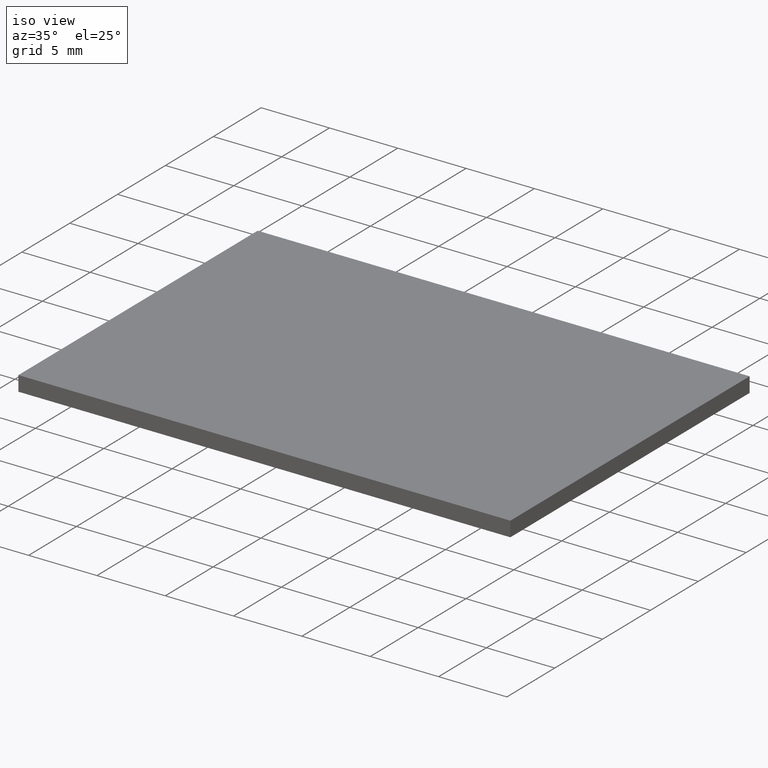
[diagram: clean part render]
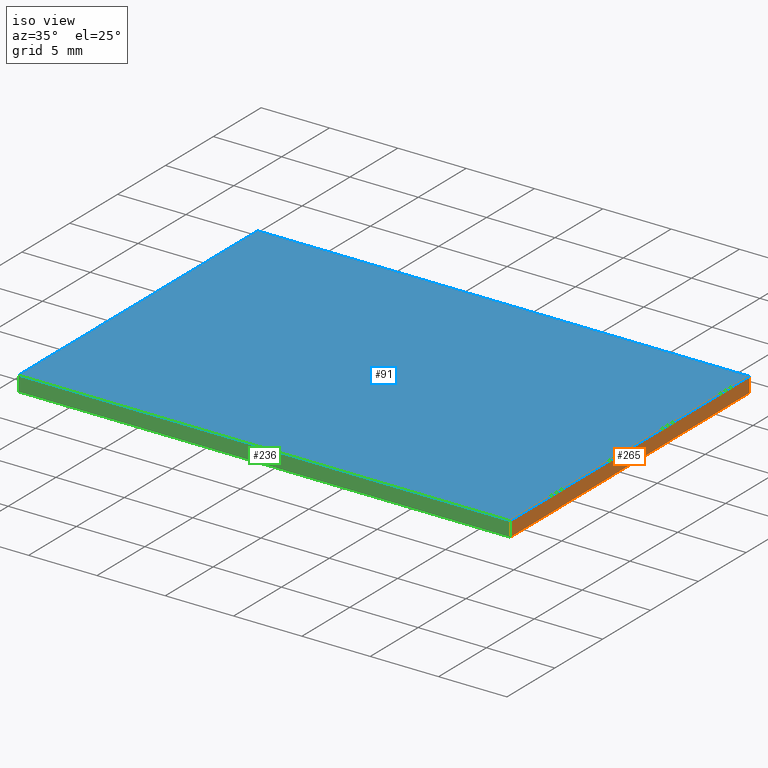
[diagram: same view with three faces highlighted in distinct colors, each labeled with its STEP entity id]
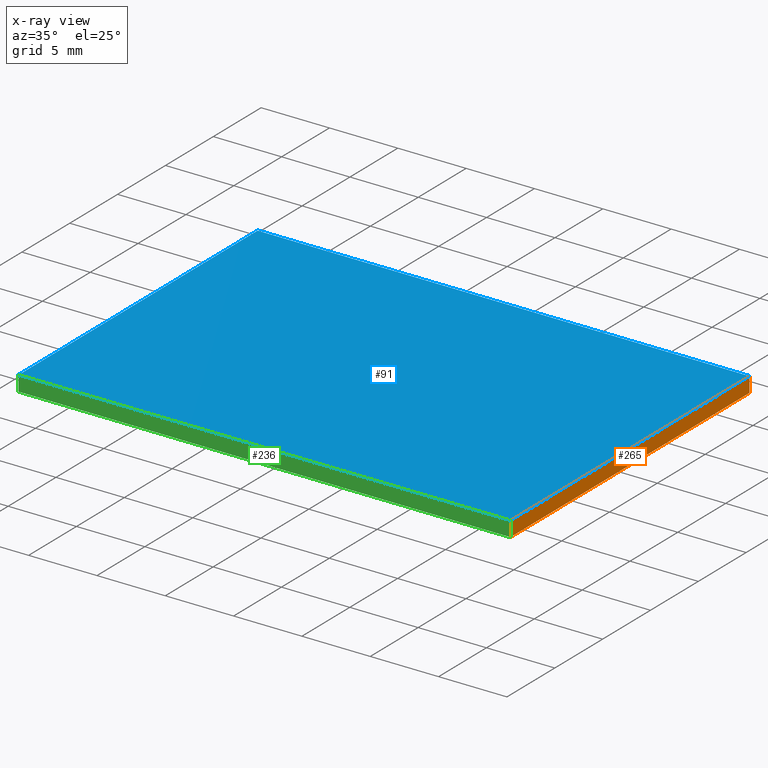
[diagram: x-ray of the same camera — body ghosted, the three highlighted faces saturated]
A machine part, iso view with three faces highlighted in distinct colors.
The next image is the same camera in x-ray (body ghosted, the three faces saturated) — at least one of them is partly hidden behind the body in this view.
Their STEP definitions:

[orange] entity #265 — the highlighted planar face has unit normal (-1, 0, 0).
#8 = VERTEX_POINT ( 'NONE', #110 ) ;
#11 = DIRECTION ( 'NONE',  ( -0.0000000000000000000, -0.0000000000000000000, -1.000000000000000000 ) ) ;
#12 = ORIENTED_EDGE ( 'NONE', *, *, #18, .T. ) ;
#13 = CARTESIAN_POINT ( 'NONE',  ( 17.99999999999999600, 12.49999999999999600, 0.0000000000000000000 ) ) ;
#18 = EDGE_CURVE ( 'NONE', #184, #8, #266, .T. ) ;
#29 = VECTOR ( 'NONE', #33, 1000.000000000000000 ) ;
#33 = DIRECTION ( 'NONE',  ( 0.0000000000000000000, 1.000000000000000000, 0.0000000000000000000 ) ) ;
#40 = DIRECTION ( 'NONE',  ( -1.000000000000000000, 0.0000000000000000000, 0.0000000000000000000 ) ) ;
#41 = DIRECTION ( 'NONE',  ( 0.0000000000000000000, 0.0000000000000000000, 1.000000000000000000 ) ) ;
#62 = CARTESIAN_POINT ( 'NONE',  ( 17.99999999999999600, 12.49999999999999600, 1.100000000000000100 ) ) ;
#64 = CARTESIAN_POINT ( 'NONE',  ( 17.99999999999999600, -12.50000000000000400, 1.100000000000000100 ) ) ;
#70 = DIRECTION ( 'NONE',  ( 0.0000000000000000000, 1.000000000000000000, 0.0000000000000000000 ) ) ;
#89 = EDGE_CURVE ( 'NONE', #254, #113, #225, .T. ) ;
#110 = CARTESIAN_POINT ( 'NONE',  ( 17.99999999999999600, -12.50000000000000400, 0.0000000000000000000 ) ) ;
#112 = CARTESIAN_POINT ( 'NONE',  ( 17.99999999999999600, -12.50000000000000400, 1.100000000000000100 ) ) ;
#113 = VERTEX_POINT ( 'NONE', #13 ) ;
#114 = CARTESIAN_POINT ( 'NONE',  ( 17.99999999999999600, -12.50000000000000400, 1.100000000000000100 ) ) ;
#122 = VECTOR ( 'NONE', #11, 1000.000000000000000 ) ;
#125 = ORIENTED_EDGE ( 'NONE', *, *, #89, .F. ) ;
#130 = FACE_OUTER_BOUND ( 'NONE', #248, .T. ) ;
#138 = PLANE ( 'NONE',  #222 ) ;
#150 = ORIENTED_EDGE ( 'NONE', *, *, #226, .F. ) ;
#159 = EDGE_CURVE ( 'NONE', #8, #113, #162, .T. ) ;
#162 = LINE ( 'NONE', #187, #29 ) ;
#165 = DIRECTION ( 'NONE',  ( -0.0000000000000000000, -0.0000000000000000000, -1.000000000000000000 ) ) ;
#175 = VECTOR ( 'NONE', #165, 1000.000000000000000 ) ;
#181 = VECTOR ( 'NONE', #70, 1000.000000000000000 ) ;
#184 = VERTEX_POINT ( 'NONE', #64 ) ;
#187 = CARTESIAN_POINT ( 'NONE',  ( 17.99999999999999600, -12.50000000000000400, 0.0000000000000000000 ) ) ;
#192 = CARTESIAN_POINT ( 'NONE',  ( 17.99999999999999600, -12.50000000000000400, 1.100000000000000100 ) ) ;
#222 = AXIS2_PLACEMENT_3D ( 'NONE', #192, #40, #41 ) ;
#225 = LINE ( 'NONE', #62, #175 ) ;
#226 = EDGE_CURVE ( 'NONE', #184, #254, #270, .T. ) ;
#234 = CARTESIAN_POINT ( 'NONE',  ( 17.99999999999999600, 12.49999999999999600, 1.100000000000000100 ) ) ;
#248 = EDGE_LOOP ( 'NONE', ( #279, #125, #150, #12 ) ) ;
#254 = VERTEX_POINT ( 'NONE', #234 ) ;
#265 = ADVANCED_FACE ( 'NONE', ( #130 ), #138, .F. ) ;
#266 = LINE ( 'NONE', #112, #122 ) ;
#270 = LINE ( 'NONE', #114, #181 ) ;
#279 = ORIENTED_EDGE ( 'NONE', *, *, #159, .T. ) ;

[blue] entity #91 — the highlighted planar face has unit normal (0, 0, -1).
#10 = VECTOR ( 'NONE', #262, 1000.000000000000000 ) ;
#24 = EDGE_CURVE ( 'NONE', #80, #186, #46, .T. ) ;
#26 = LINE ( 'NONE', #282, #94 ) ;
#46 = LINE ( 'NONE', #277, #301 ) ;
#52 = AXIS2_PLACEMENT_3D ( 'NONE', #105, #133, #300 ) ;
#63 = ORIENTED_EDGE ( 'NONE', *, *, #273, .T. ) ;
#64 = CARTESIAN_POINT ( 'NONE',  ( 17.99999999999999600, -12.50000000000000400, 1.100000000000000100 ) ) ;
#70 = DIRECTION ( 'NONE',  ( 0.0000000000000000000, 1.000000000000000000, 0.0000000000000000000 ) ) ;
#76 = EDGE_LOOP ( 'NONE', ( #231, #63, #207, #257 ) ) ;
#80 = VERTEX_POINT ( 'NONE', #161 ) ;
#83 = PLANE ( 'NONE',  #52 ) ;
#90 = CARTESIAN_POINT ( 'NONE',  ( -18.00000000000000400, 12.49999999999999600, 1.100000000000000100 ) ) ;
#91 = ADVANCED_FACE ( 'NONE', ( #95 ), #83, .F. ) ;
#94 = VECTOR ( 'NONE', #194, 1000.000000000000000 ) ;
#95 = FACE_OUTER_BOUND ( 'NONE', #76, .T. ) ;
#105 = CARTESIAN_POINT ( 'NONE',  ( 0.0000000000000000000, 0.0000000000000000000, 1.100000000000000100 ) ) ;
#114 = CARTESIAN_POINT ( 'NONE',  ( 17.99999999999999600, -12.50000000000000400, 1.100000000000000100 ) ) ;
#133 = DIRECTION ( 'NONE',  ( 0.0000000000000000000, 0.0000000000000000000, -1.000000000000000000 ) ) ;
#134 = DIRECTION ( 'NONE',  ( -0.0000000000000000000, -1.000000000000000000, -0.0000000000000000000 ) ) ;
#161 = CARTESIAN_POINT ( 'NONE',  ( -18.00000000000000400, 12.49999999999999600, 1.100000000000000100 ) ) ;
#181 = VECTOR ( 'NONE', #70, 1000.000000000000000 ) ;
#184 = VERTEX_POINT ( 'NONE', #64 ) ;
#186 = VERTEX_POINT ( 'NONE', #286 ) ;
#194 = DIRECTION ( 'NONE',  ( 1.000000000000000000, 0.0000000000000000000, 0.0000000000000000000 ) ) ;
#207 = ORIENTED_EDGE ( 'NONE', *, *, #24, .T. ) ;
#220 = LINE ( 'NONE', #90, #10 ) ;
#226 = EDGE_CURVE ( 'NONE', #184, #254, #270, .T. ) ;
#231 = ORIENTED_EDGE ( 'NONE', *, *, #226, .T. ) ;
#234 = CARTESIAN_POINT ( 'NONE',  ( 17.99999999999999600, 12.49999999999999600, 1.100000000000000100 ) ) ;
#254 = VERTEX_POINT ( 'NONE', #234 ) ;
#257 = ORIENTED_EDGE ( 'NONE', *, *, #258, .T. ) ;
#258 = EDGE_CURVE ( 'NONE', #186, #184, #26, .T. ) ;
#262 = DIRECTION ( 'NONE',  ( -1.000000000000000000, -0.0000000000000000000, -0.0000000000000000000 ) ) ;
#270 = LINE ( 'NONE', #114, #181 ) ;
#273 = EDGE_CURVE ( 'NONE', #254, #80, #220, .T. ) ;
#277 = CARTESIAN_POINT ( 'NONE',  ( -18.00000000000000400, -12.50000000000000400, 1.100000000000000100 ) ) ;
#282 = CARTESIAN_POINT ( 'NONE',  ( -18.00000000000000400, -12.50000000000000400, 1.100000000000000100 ) ) ;
#286 = CARTESIAN_POINT ( 'NONE',  ( -18.00000000000000400, -12.50000000000000400, 1.100000000000000100 ) ) ;
#300 = DIRECTION ( 'NONE',  ( -1.000000000000000000, 0.0000000000000000000, -0.0000000000000000000 ) ) ;
#301 = VECTOR ( 'NONE', #134, 1000.000000000000000 ) ;

[green] entity #236 — the highlighted planar face has unit normal (0, 1, 0).
#8 = VERTEX_POINT ( 'NONE', #110 ) ;
#11 = DIRECTION ( 'NONE',  ( -0.0000000000000000000, -0.0000000000000000000, -1.000000000000000000 ) ) ;
#14 = CARTESIAN_POINT ( 'NONE',  ( -18.00000000000000400, -12.50000000000000400, 1.100000000000000100 ) ) ;
#18 = EDGE_CURVE ( 'NONE', #184, #8, #266, .T. ) ;
#22 = VERTEX_POINT ( 'NONE', #302 ) ;
#26 = LINE ( 'NONE', #282, #94 ) ;
#55 = ORIENTED_EDGE ( 'NONE', *, *, #223, .T. ) ;
#59 = FACE_OUTER_BOUND ( 'NONE', #271, .T. ) ;
#60 = EDGE_CURVE ( 'NONE', #22, #8, #261, .T. ) ;
#64 = CARTESIAN_POINT ( 'NONE',  ( 17.99999999999999600, -12.50000000000000400, 1.100000000000000100 ) ) ;
#71 = ORIENTED_EDGE ( 'NONE', *, *, #258, .F. ) ;
#87 = VECTOR ( 'NONE', #193, 1000.000000000000000 ) ;
#93 = DIRECTION ( 'NONE',  ( 0.0000000000000000000, -0.0000000000000000000, 1.000000000000000000 ) ) ;
#94 = VECTOR ( 'NONE', #194, 1000.000000000000000 ) ;
#110 = CARTESIAN_POINT ( 'NONE',  ( 17.99999999999999600, -12.50000000000000400, 0.0000000000000000000 ) ) ;
#112 = CARTESIAN_POINT ( 'NONE',  ( 17.99999999999999600, -12.50000000000000400, 1.100000000000000100 ) ) ;
#117 = DIRECTION ( 'NONE',  ( 0.0000000000000000000, 1.000000000000000000, 0.0000000000000000000 ) ) ;
#122 = VECTOR ( 'NONE', #11, 1000.000000000000000 ) ;
#129 = ORIENTED_EDGE ( 'NONE', *, *, #18, .F. ) ;
#144 = AXIS2_PLACEMENT_3D ( 'NONE', #260, #117, #93 ) ;
#164 = DIRECTION ( 'NONE',  ( 1.000000000000000000, 0.0000000000000000000, 0.0000000000000000000 ) ) ;
#184 = VERTEX_POINT ( 'NONE', #64 ) ;
#185 = CARTESIAN_POINT ( 'NONE',  ( -18.00000000000000400, -12.50000000000000400, 0.0000000000000000000 ) ) ;
#186 = VERTEX_POINT ( 'NONE', #286 ) ;
#193 = DIRECTION ( 'NONE',  ( -0.0000000000000000000, -0.0000000000000000000, -1.000000000000000000 ) ) ;
#194 = DIRECTION ( 'NONE',  ( 1.000000000000000000, 0.0000000000000000000, 0.0000000000000000000 ) ) ;
#219 = LINE ( 'NONE', #14, #87 ) ;
#223 = EDGE_CURVE ( 'NONE', #186, #22, #219, .T. ) ;
#236 = ADVANCED_FACE ( 'NONE', ( #59 ), #305, .F. ) ;
#239 = VECTOR ( 'NONE', #164, 1000.000000000000000 ) ;
#245 = ORIENTED_EDGE ( 'NONE', *, *, #60, .T. ) ;
#258 = EDGE_CURVE ( 'NONE', #186, #184, #26, .T. ) ;
#260 = CARTESIAN_POINT ( 'NONE',  ( -18.00000000000000400, -12.50000000000000400, 1.100000000000000100 ) ) ;
#261 = LINE ( 'NONE', #185, #239 ) ;
#266 = LINE ( 'NONE', #112, #122 ) ;
#271 = EDGE_LOOP ( 'NONE', ( #245, #129, #71, #55 ) ) ;
#282 = CARTESIAN_POINT ( 'NONE',  ( -18.00000000000000400, -12.50000000000000400, 1.100000000000000100 ) ) ;
#286 = CARTESIAN_POINT ( 'NONE',  ( -18.00000000000000400, -12.50000000000000400, 1.100000000000000100 ) ) ;
#302 = CARTESIAN_POINT ( 'NONE',  ( -18.00000000000000400, -12.50000000000000400, 0.0000000000000000000 ) ) ;
#305 = PLANE ( 'NONE',  #144 ) ;